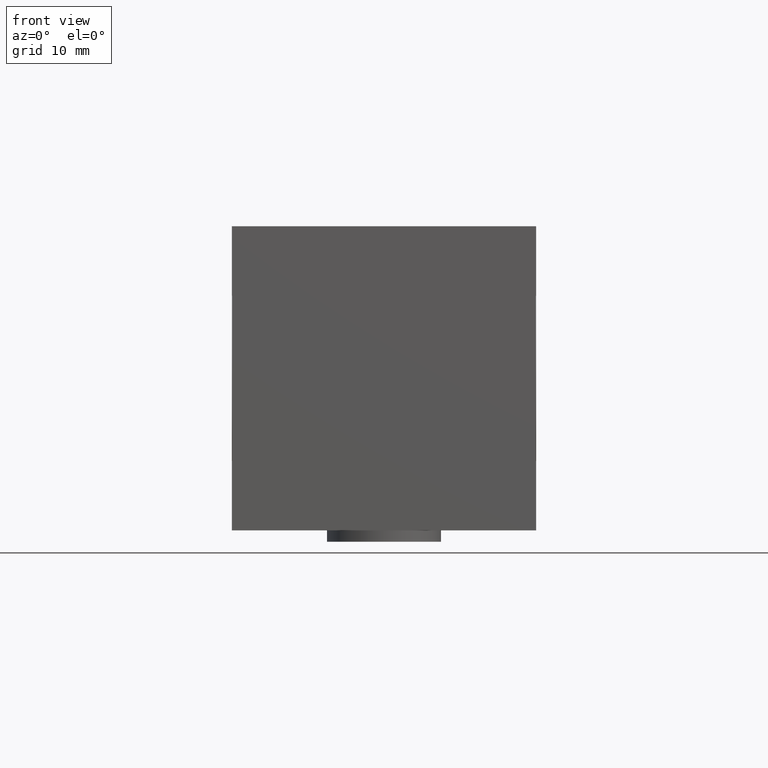
[diagram: clean part render]
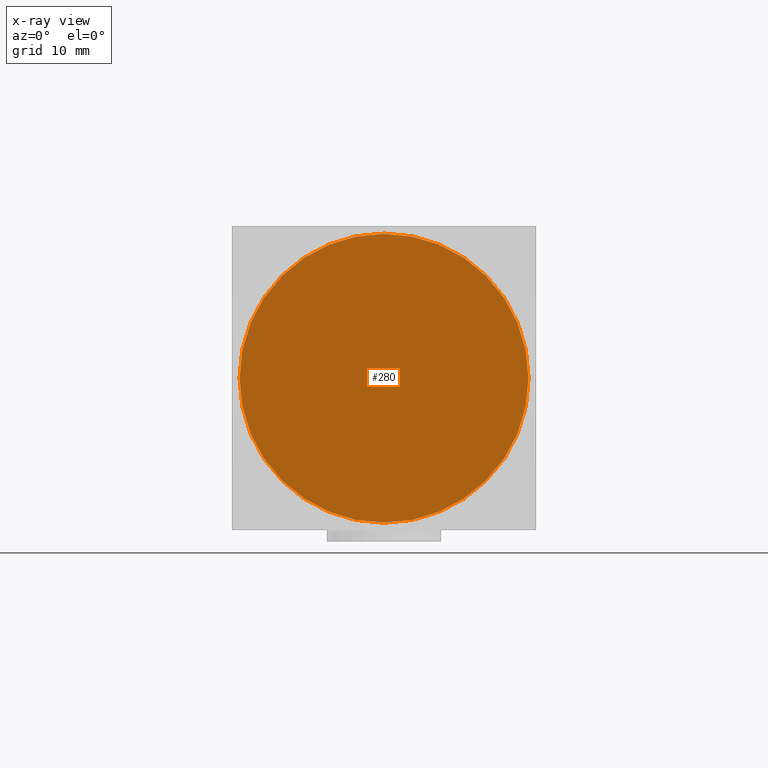
[diagram: x-ray — body ghosted, one internal face saturated and labeled with its STEP entity id]
A machine part, front view, then the same camera in x-ray: the body is ghosted and one INTERNAL B-rep face — a face not visible from any outside direction — is saturated and labeled: STEP entity #280.
In plain terms, the highlighted planar face has unit normal (0, 1, 0).
Its self-contained STEP definition (entity closure, byte-faithful):
#280 = ADVANCED_FACE( '', ( #624 ), #625, .F. );
#624 = FACE_OUTER_BOUND( '', #1069, .T. );
#625 = PLANE( '', #1070 );
#1069 = EDGE_LOOP( '', ( #1640 ) );
#1070 = AXIS2_PLACEMENT_3D( '', #1641, #1642, #1643 );
#1640 = ORIENTED_EDGE( '', *, *, #2561, .F. );
#1641 = CARTESIAN_POINT( '', ( 0.000000000000000, 0.000000000000000, 0.000000000000000 ) );
#1642 = DIRECTION( '', ( 1.00000000000000, 0.000000000000000, -0.000000000000000 ) );
#1643 = DIRECTION( '', ( -0.000000000000000, 0.000000000000000, -1.00000000000000 ) );
#2561 = EDGE_CURVE( '', #3047, #3047, #3048, .T. );
#3047 = VERTEX_POINT( '', #3695 );
#3048 = CIRCLE( '', #3696, 19.0000000000000 );
#3695 = CARTESIAN_POINT( '', ( 0.000000000000000, 0.000000000000000, -19.0000000000000 ) );
#3696 = AXIS2_PLACEMENT_3D( '', #4300, #4301, #4302 );
#4300 = CARTESIAN_POINT( '', ( 0.000000000000000, 0.000000000000000, 0.000000000000000 ) );
#4301 = DIRECTION( '', ( 1.00000000000000, 0.000000000000000, -0.000000000000000 ) );
#4302 = DIRECTION( '', ( -0.000000000000000, 0.000000000000000, -1.00000000000000 ) );